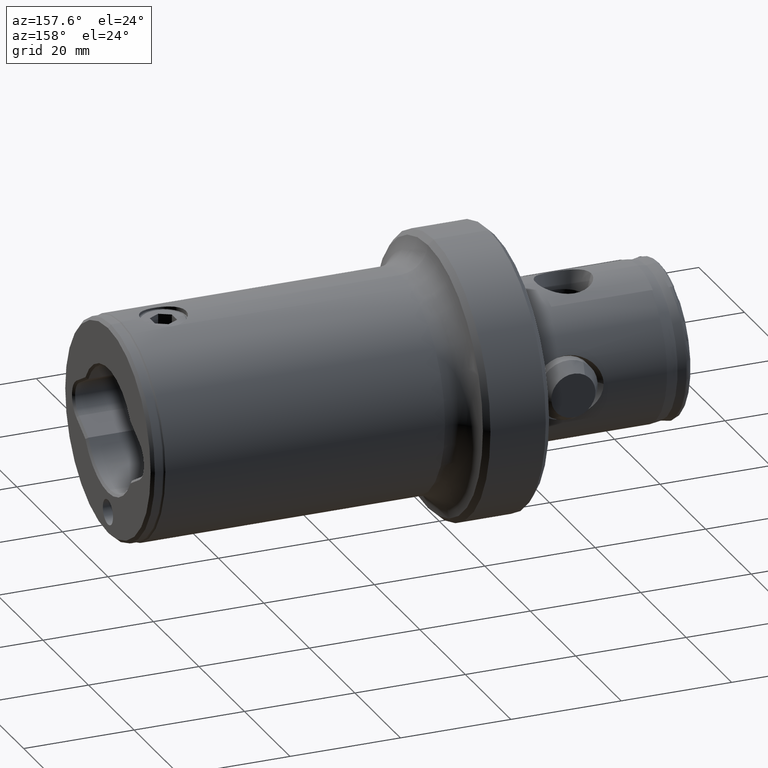
[diagram: clean part render]
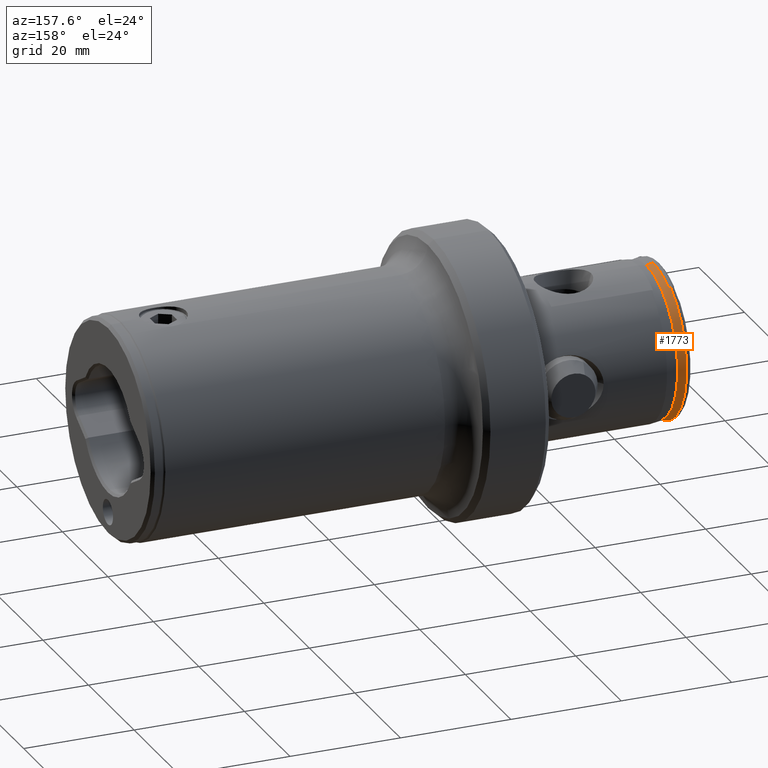
[diagram: same view with one face highlighted and labeled with its STEP entity id]
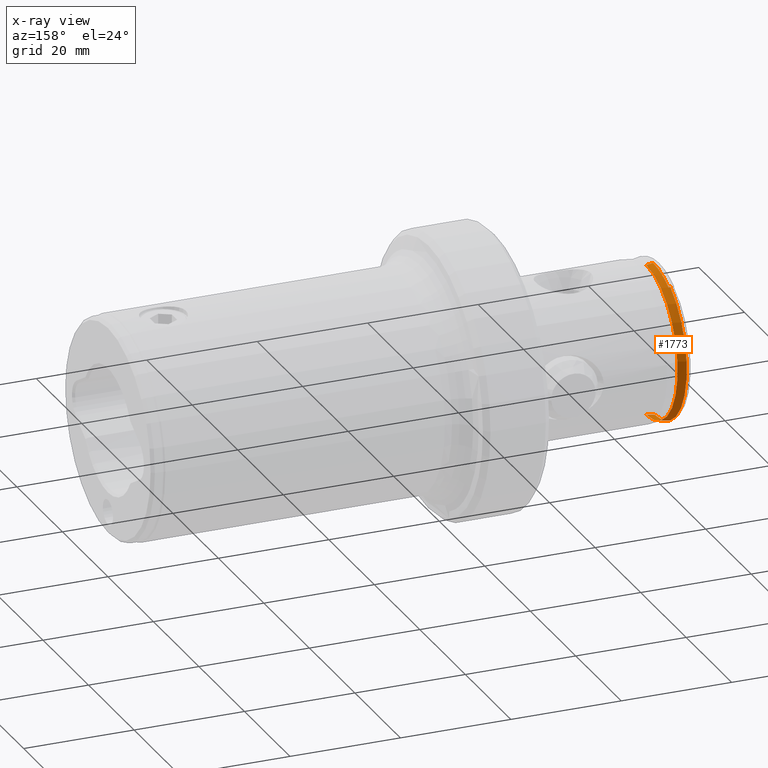
[diagram: x-ray of the same camera — body ghosted, the highlighted face saturated]
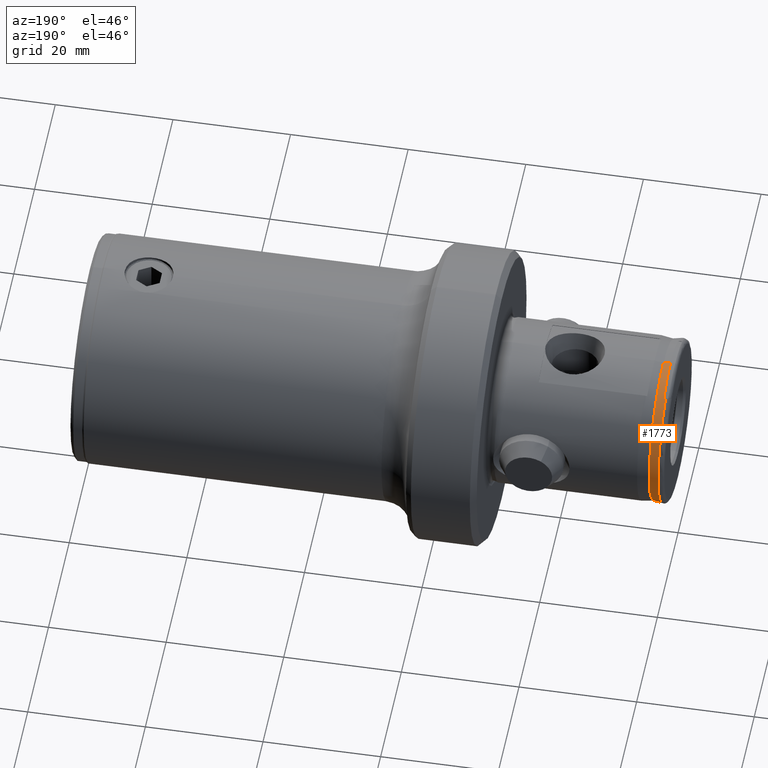
[diagram: same view with one face highlighted and labeled with its STEP entity id]
A machine part, auxiliary view. The second image highlights one B-rep face of the part: STEP entity #1773.
The next image is the same camera in x-ray: the body ghosted, the highlighted face saturated — about 1% of this face is hidden behind the body in this view.
A second angle (auxiliary view) of the same face is appended — the face is thin or edge-on in the first view.
In plain terms, the highlighted conical surface has half-angle 10 deg.
Its self-contained STEP definition (entity closure, byte-faithful):
#24 = CIRCLE ( 'NONE', #1131, 13.98784620240976500 ) ;
#50 = EDGE_LOOP ( 'NONE', ( #712, #2889, #1106, #2195, #3437, #285 ) ) ;
#60 = CARTESIAN_POINT ( 'NONE',  ( 0.9389185421335433100, 6.750000000000006200, 12.25142201469973100 ) ) ;
#77 = CARTESIAN_POINT ( 'NONE',  ( 1.040758841226771200, 6.750000000000006200, 12.23091670906102600 ) ) ;
#136 = VERTEX_POINT ( 'NONE', #4012 ) ;
#285 = ORIENTED_EDGE ( 'NONE', *, *, #3742, .F. ) ;
#301 = B_SPLINE_CURVE_WITH_KNOTS ( 'NONE', 3,
 ( #544, #3412, #950, #3822, #1349, #4232, #1750, #4640 ),
 .UNSPECIFIED., .F., .F.,
 ( 4, 2, 2, 4 ),
 ( 0.007010307117132642500, 0.008762557240219270500, 0.01051480736330589900, 0.01401930760947915600 ),
 .UNSPECIFIED. ) ;
#404 = CARTESIAN_POINT ( 'NONE',  ( 0.9389185421335433100, 0.0000000000000000000, 0.0000000000000000000 ) ) ;
#497 = CARTESIAN_POINT ( 'NONE',  ( 0.9389185421335433100, 6.750000000000006200, 12.25142201469973100 ) ) ;
#530 = DIRECTION ( 'NONE',  ( 0.0000000000000000000, 0.0000000000000000000, 1.000000000000000000 ) ) ;
#544 = CARTESIAN_POINT ( 'NONE',  ( 1.266980658193956200, -7.260858073622856900E-016, 13.93000000000000000 ) ) ;
#593 = VERTEX_POINT ( 'NONE', #840 ) ;
#691 = EDGE_CURVE ( 'NONE', #593, #136, #301, .T. ) ;
#712 = ORIENTED_EDGE ( 'NONE', *, *, #1470, .T. ) ;
#802 = EDGE_CURVE ( 'NONE', #963, #2320, #24, .T. ) ;
#812 = DIRECTION ( 'NONE',  ( 0.0000000000000000000, 0.0000000000000000000, 1.000000000000000000 ) ) ;
#840 = CARTESIAN_POINT ( 'NONE',  ( 1.266980658193956200, -7.260858073622856900E-016, 13.93000000000000000 ) ) ;
#853 = EDGE_CURVE ( 'NONE', #5259, #2320, #4978, .T. ) ;
#856 = VECTOR ( 'NONE', #4482, 1000.000000000000200 ) ;
#950 = CARTESIAN_POINT ( 'NONE',  ( 1.265943107063431700, 1.168067009480273000, 13.89359403572988900 ) ) ;
#963 = VERTEX_POINT ( 'NONE', #60 ) ;
#1106 = ORIENTED_EDGE ( 'NONE', *, *, #802, .F. ) ;
#1131 = AXIS2_PLACEMENT_3D ( 'NONE', #404, #3282, #812 ) ;
#1275 = EDGE_CURVE ( 'NONE', #136, #963, #2762, .T. ) ;
#1349 = CARTESIAN_POINT ( 'NONE',  ( 1.258562614256013300, 2.920225359410509200, 13.63460678695712500 ) ) ;
#1470 = EDGE_CURVE ( 'NONE', #3191, #5259, #1803, .T. ) ;
#1596 = CARTESIAN_POINT ( 'NONE',  ( 2.480014037453432100, 0.0000000000000000000, 13.71610948673659000 ) ) ;
#1681 = CARTESIAN_POINT ( 'NONE',  ( 1.217558971091492500, 6.750000000000006200, 12.19529657203607800 ) ) ;
#1750 = CARTESIAN_POINT ( 'NONE',  ( 1.233829530573619300, 5.711945350959273200, 12.76657251631287900 ) ) ;
#1773 = ADVANCED_FACE ( 'NONE', ( #3813 ), #4773, .T. ) ;
#1803 = CIRCLE ( 'NONE', #2412, 13.71610948673659000 ) ;
#2046 = DIRECTION ( 'NONE',  ( -0.9848077530122079100, 2.126576849575779900E-017, -0.1736481776669310000 ) ) ;
#2126 = CARTESIAN_POINT ( 'NONE',  ( 2.480014037453432100, 0.0000000000000000000, 0.0000000000000000000 ) ) ;
#2195 = ORIENTED_EDGE ( 'NONE', *, *, #1275, .F. ) ;
#2320 = VERTEX_POINT ( 'NONE', #3521 ) ;
#2335 = CARTESIAN_POINT ( 'NONE',  ( 2.480014037453432100, 0.0000000000000000000, 0.0000000000000000000 ) ) ;
#2412 = AXIS2_PLACEMENT_3D ( 'NONE', #2335, #5228, #2761 ) ;
#2523 = CARTESIAN_POINT ( 'NONE',  ( 1.091678116537653200, 6.750000000000006200, 12.22065971559495000 ) ) ;
#2595 = AXIS2_PLACEMENT_3D ( 'NONE', #2126, #2978, #530 ) ;
#2761 = DIRECTION ( 'NONE',  ( 0.0000000000000000000, 0.0000000000000000000, 1.000000000000000000 ) ) ;
#2762 = B_SPLINE_CURVE_WITH_KNOTS ( 'NONE', 3,
 ( #1681, #4568, #4999, #2523, #77, #2953, #497 ),
 .UNSPECIFIED., .F., .F.,
 ( 4, 3, 4 ),
 ( 0.004260509015174108500, 0.004388919420077108300, 0.004544745407327726400 ),
 .UNSPECIFIED. ) ;
#2889 = ORIENTED_EDGE ( 'NONE', *, *, #853, .T. ) ;
#2953 = CARTESIAN_POINT ( 'NONE',  ( 0.9898389814780943500, 6.750000000000006200, 12.24117080159559200 ) ) ;
#2978 = DIRECTION ( 'NONE',  ( -1.000000000000000000, -0.0000000000000000000, -0.0000000000000000000 ) ) ;
#3067 = LINE ( 'NONE', #1596, #856 ) ;
#3191 = VERTEX_POINT ( 'NONE', #3633 ) ;
#3282 = DIRECTION ( 'NONE',  ( -1.000000000000000000, -0.0000000000000000000, -0.0000000000000000000 ) ) ;
#3412 = CARTESIAN_POINT ( 'NONE',  ( 1.266980658193956400, 0.5840840481767252100, 13.93000000000000300 ) ) ;
#3437 = ORIENTED_EDGE ( 'NONE', *, *, #691, .F. ) ;
#3521 = CARTESIAN_POINT ( 'NONE',  ( 0.9389185421335433100, 1.713017107874657600E-015, -13.98784620240976300 ) ) ;
#3633 = CARTESIAN_POINT ( 'NONE',  ( 2.480014037453432100, 1.697122238387477400E-015, 13.71610948673659000 ) ) ;
#3742 = EDGE_CURVE ( 'NONE', #3191, #593, #3067, .T. ) ;
#3813 = FACE_OUTER_BOUND ( 'NONE', #50, .T. ) ;
#3822 = CARTESIAN_POINT ( 'NONE',  ( 1.261745668129415000, 2.335826131853401500, 13.74630396361697700 ) ) ;
#4007 = VECTOR ( 'NONE', #2046, 1000.000000000000200 ) ;
#4012 = CARTESIAN_POINT ( 'NONE',  ( 1.217558971091492500, 6.750000000000006200, 12.19529657203607800 ) ) ;
#4232 = CARTESIAN_POINT ( 'NONE',  ( 1.246071208777727000, 4.624188853442726500, 13.19622518982389900 ) ) ;
#4482 = DIRECTION ( 'NONE',  ( -0.9848077530122079100, 0.0000000000000000000, 0.1736481776669310000 ) ) ;
#4519 = CARTESIAN_POINT ( 'NONE',  ( 2.480014037453432100, 1.679738957968660800E-015, -13.71610948673659000 ) ) ;
#4568 = CARTESIAN_POINT ( 'NONE',  ( 1.175599084844066300, 6.750000000000006200, 12.20375293130864100 ) ) ;
#4640 = CARTESIAN_POINT ( 'NONE',  ( 1.217558971091492500, 6.750000000000006200, 12.19529657203607800 ) ) ;
#4773 = CONICAL_SURFACE ( 'NONE', #2595, 13.71610948673659000, 0.1745329251994336400 ) ;
#4978 = LINE ( 'NONE', #4519, #4007 ) ;
#4999 = CARTESIAN_POINT ( 'NONE',  ( 1.133638799080097100, 6.750000000000006200, 12.21220730844574700 ) ) ;
#5228 = DIRECTION ( 'NONE',  ( -1.000000000000000000, -0.0000000000000000000, -0.0000000000000000000 ) ) ;
#5259 = VERTEX_POINT ( 'NONE', #5287 ) ;
#5287 = CARTESIAN_POINT ( 'NONE',  ( 2.480014037453432100, 0.0000000000000000000, -13.71610948673659000 ) ) ;